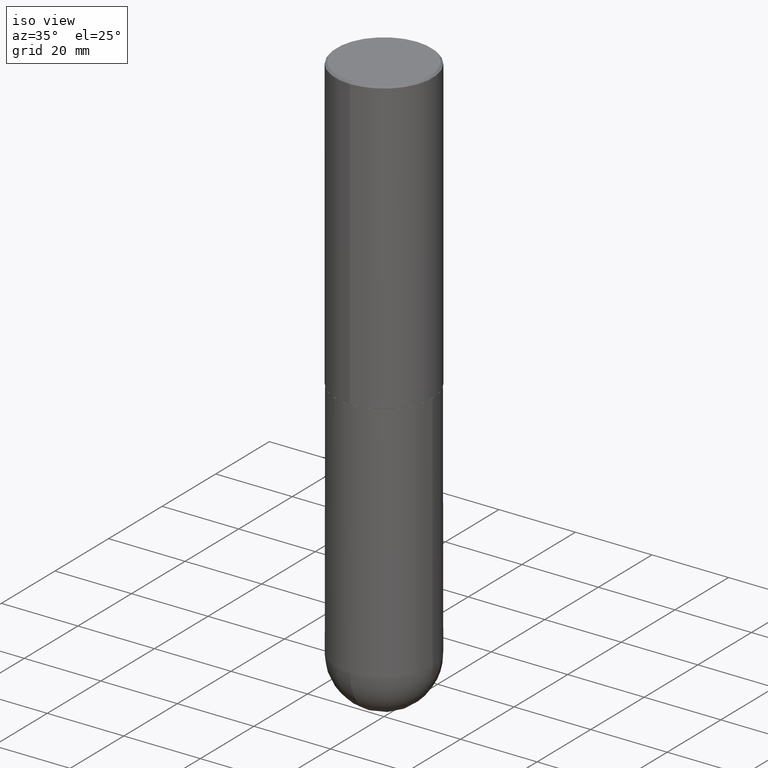
[diagram: clean part render]
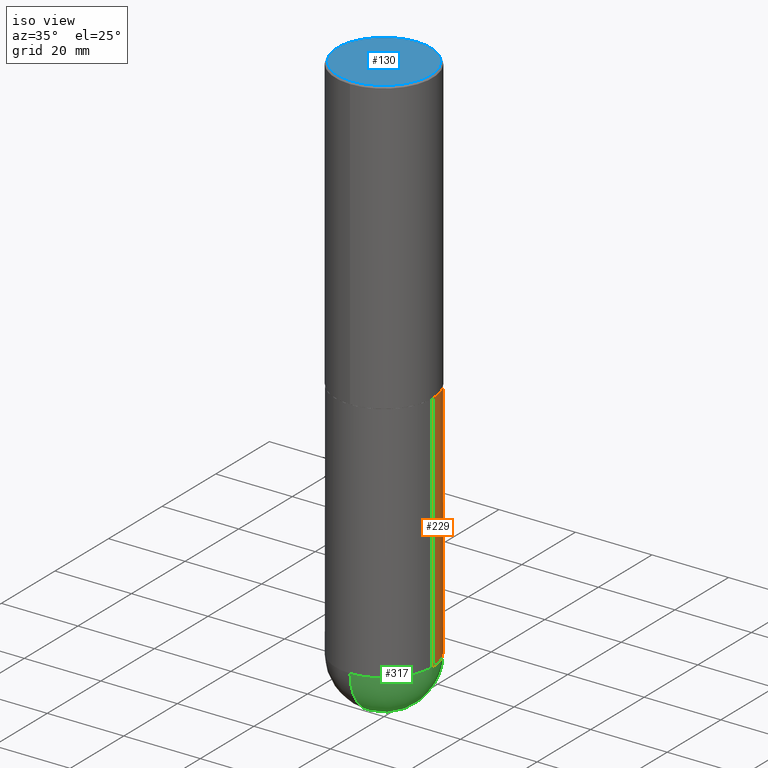
[diagram: same view with three faces highlighted in distinct colors, each labeled with its STEP entity id]
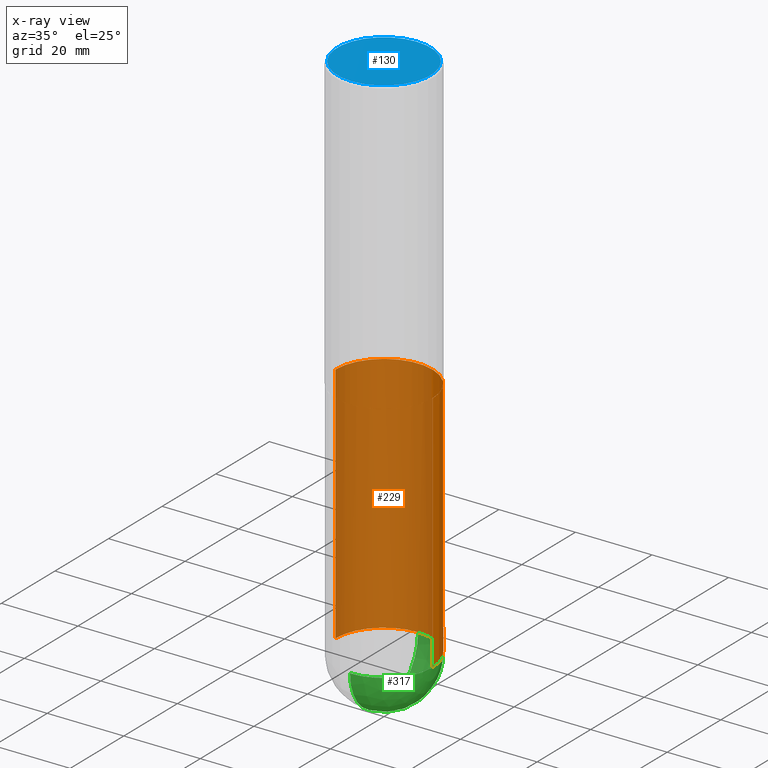
[diagram: x-ray of the same camera — body ghosted, the three highlighted faces saturated]
A machine part, iso view with three faces highlighted in distinct colors.
The next image is the same camera in x-ray (body ghosted, the three faces saturated) — at least one of them is partly hidden behind the body in this view.
Their STEP definitions:

[orange] entity #229 — the highlighted cylindrical surface (partial cylindrical patch) has radius 12.7 mm, axis along (-0, 0, 1).
#2 = DIRECTION ( 'NONE',  ( 1.000000000000000000, -6.982962677686266711E-15, 4.876176775795935793E-29 ) ) ;
#4 = FACE_OUTER_BOUND ( 'NONE', #378, .T. ) ;
#5 = DIRECTION ( 'NONE',  ( -2.445468806185136877E-29, 3.491481338843145188E-15, 1.000000000000000000 ) ) ;
#6 = EDGE_CURVE ( 'NONE', #155, #311, #404, .T. ) ;
#41 = CARTESIAN_POINT ( 'NONE',  ( -0.5000000000000000000, -1.128608201128286947E-14, -3.000000000000000444 ) ) ;
#60 = LINE ( 'NONE', #287, #91 ) ;
#62 = LINE ( 'NONE', #257, #373 ) ;
#63 = EDGE_CURVE ( 'NONE', #224, #143, #60, .T. ) ;
#65 = AXIS2_PLACEMENT_3D ( 'NONE', #396, #302, #201 ) ;
#67 = DIRECTION ( 'NONE',  ( -2.445468806185136877E-29, 3.491481338843145188E-15, 1.000000000000000000 ) ) ;
#75 = DIRECTION ( 'NONE',  ( 1.000000000000000000, -6.982962677686270655E-15, 0.000000000000000000 ) ) ;
#79 = DIRECTION ( 'NONE',  ( -2.445468806185136597E-29, 3.491481338843145583E-15, 1.000000000000000000 ) ) ;
#86 = ORIENTED_EDGE ( 'NONE', *, *, #313, .T. ) ;
#91 = VECTOR ( 'NONE', #5, 39.37007874015748143 ) ;
#95 = AXIS2_PLACEMENT_3D ( 'NONE', #344, #383, #2 ) ;
#111 = ORIENTED_EDGE ( 'NONE', *, *, #6, .T. ) ;
#128 = AXIS2_PLACEMENT_3D ( 'NONE', #164, #226, #352 ) ;
#135 = CIRCLE ( 'NONE', #65, 0.5000000000000000000 ) ;
#143 = VERTEX_POINT ( 'NONE', #346 ) ;
#147 = AXIS2_PLACEMENT_3D ( 'NONE', #199, #79, #75 ) ;
#151 = EDGE_CURVE ( 'NONE', #311, #360, #62, .T. ) ;
#155 = VERTEX_POINT ( 'NONE', #351 ) ;
#164 = CARTESIAN_POINT ( 'NONE',  ( 1.345007843401825128E-28, -1.920314736363730603E-14, -5.500000000000000888 ) ) ;
#172 = ORIENTED_EDGE ( 'NONE', *, *, #63, .F. ) ;
#183 = ORIENTED_EDGE ( 'NONE', *, *, #354, .F. ) ;
#199 = CARTESIAN_POINT ( 'NONE',  ( 1.345007843401825128E-28, -1.920314736363730603E-14, -5.500000000000000888 ) ) ;
#201 = DIRECTION ( 'NONE',  ( 1.000000000000000000, -6.982962677686266711E-15, 0.000000000000000000 ) ) ;
#214 = CYLINDRICAL_SURFACE ( 'NONE', #95, 0.5000000000000000000 ) ;
#219 = CIRCLE ( 'NONE', #147, 0.5000000000000000000 ) ;
#224 = VERTEX_POINT ( 'NONE', #316 ) ;
#226 = DIRECTION ( 'NONE',  ( -2.445468806185136597E-29, 3.491481338843145583E-15, 1.000000000000000000 ) ) ;
#229 = ADVANCED_FACE ( 'NONE', ( #4 ), #214, .T. ) ;
#231 = CARTESIAN_POINT ( 'NONE',  ( -0.5000000000000000000, -1.128608201128287263E-14, -5.500000000000000888 ) ) ;
#257 = CARTESIAN_POINT ( 'NONE',  ( -0.5000000000000000000, 3.552713678800500929E-15, -2.459467545127452891E-29 ) ) ;
#287 = CARTESIAN_POINT ( 'NONE',  ( 0.5000000000000000000, -3.491481338843133355E-15, 2.438088387897967896E-29 ) ) ;
#302 = DIRECTION ( 'NONE',  ( -2.445468806185136597E-29, 3.491481338843145583E-15, 1.000000000000000000 ) ) ;
#311 = VERTEX_POINT ( 'NONE', #231 ) ;
#313 = EDGE_CURVE ( 'NONE', #224, #155, #219, .T. ) ;
#316 = CARTESIAN_POINT ( 'NONE',  ( 0.5000000000000000000, -1.833027702892651007E-14, -5.500000000000000888 ) ) ;
#344 = CARTESIAN_POINT ( 'NONE',  ( 0.000000000000000000, 0.000000000000000000, 0.000000000000000000 ) ) ;
#346 = CARTESIAN_POINT ( 'NONE',  ( 0.5000000000000000000, -1.396592535537257129E-14, -3.000000000000000444 ) ) ;
#351 = CARTESIAN_POINT ( 'NONE',  ( 3.491481338843267462E-15, 0.4999999999999808487, -5.500000000000002665 ) ) ;
#352 = DIRECTION ( 'NONE',  ( 1.000000000000000000, -6.982962677686270655E-15, 0.000000000000000000 ) ) ;
#354 = EDGE_CURVE ( 'NONE', #143, #360, #135, .T. ) ;
#360 = VERTEX_POINT ( 'NONE', #41 ) ;
#373 = VECTOR ( 'NONE', #67, 39.37007874015748143 ) ;
#378 = EDGE_LOOP ( 'NONE', ( #111, #399, #183, #172, #86 ) ) ;
#383 = DIRECTION ( 'NONE',  ( -2.445468806185136597E-29, 3.491481338843145583E-15, 1.000000000000000000 ) ) ;
#396 = CARTESIAN_POINT ( 'NONE',  ( 7.336406418555409790E-29, -1.047444401652943635E-14, -3.000000000000000444 ) ) ;
#399 = ORIENTED_EDGE ( 'NONE', *, *, #151, .T. ) ;
#404 = CIRCLE ( 'NONE', #128, 0.5000000000000000000 ) ;

[blue] entity #130 — the highlighted planar face has unit normal (0, -0, -1).
#9 = AXIS2_PLACEMENT_3D ( 'NONE', #292, #142, #260 ) ;
#13 = EDGE_CURVE ( 'NONE', #105, #174, #377, .T. ) ;
#15 = EDGE_CURVE ( 'NONE', #174, #105, #210, .T. ) ;
#37 = DIRECTION ( 'NONE',  ( 2.445032266171691320E-29, -3.492106488988713156E-15, -1.000000000000000000 ) ) ;
#44 = ORIENTED_EDGE ( 'NONE', *, *, #13, .T. ) ;
#98 = DIRECTION ( 'NONE',  ( 6.982962677686265922E-15, 1.000000000000000000, -3.492106488988713156E-15 ) ) ;
#105 = VERTEX_POINT ( 'NONE', #267 ) ;
#113 = ORIENTED_EDGE ( 'NONE', *, *, #15, .T. ) ;
#129 = PLANE ( 'NONE',  #250 ) ;
#130 = ADVANCED_FACE ( 'NONE', ( #163 ), #129, .F. ) ;
#142 = DIRECTION ( 'NONE',  ( -2.445032266171691881E-29, 3.492106488988713156E-15, 1.000000000000000000 ) ) ;
#150 = CARTESIAN_POINT ( 'NONE',  ( -3.361644018908053211E-15, -0.4800000000000010369, 5.624294268682506588E-16 ) ) ;
#161 = DIRECTION ( 'NONE',  ( -2.445032266171691881E-29, 3.492106488988713156E-15, 1.000000000000000000 ) ) ;
#163 = FACE_OUTER_BOUND ( 'NONE', #394, .T. ) ;
#174 = VERTEX_POINT ( 'NONE', #150 ) ;
#198 = AXIS2_PLACEMENT_3D ( 'NONE', #208, #161, #230 ) ;
#208 = CARTESIAN_POINT ( 'NONE',  ( 2.723232164255456106E-44, -3.889444259444987348E-30, -1.113781687846335001E-15 ) ) ;
#210 = CIRCLE ( 'NONE', #9, 0.4800000000000010369 ) ;
#230 = DIRECTION ( 'NONE',  ( -6.982962677686265922E-15, -1.000000000000000000, 3.492106488988713156E-15 ) ) ;
#250 = AXIS2_PLACEMENT_3D ( 'NONE', #388, #37, #98 ) ;
#260 = DIRECTION ( 'NONE',  ( -6.982962677686265922E-15, -1.000000000000000000, 3.492106488988713156E-15 ) ) ;
#267 = CARTESIAN_POINT ( 'NONE',  ( 3.421651712066274001E-15, 0.4800000000000010369, -2.789992802560921055E-15 ) ) ;
#292 = CARTESIAN_POINT ( 'NONE',  ( 2.723232164255456106E-44, -3.889444259444987348E-30, -1.113781687846335001E-15 ) ) ;
#377 = CIRCLE ( 'NONE', #198, 0.4800000000000010369 ) ;
#388 = CARTESIAN_POINT ( 'NONE',  ( 3.351822085289415042E-15, 0.4800000000000010369, -2.233101958637753555E-15 ) ) ;
#394 = EDGE_LOOP ( 'NONE', ( #44, #113 ) ) ;

[green] entity #317 — the highlighted spherical surface has radius 12.7 mm.
#11 = ORIENTED_EDGE ( 'NONE', *, *, #313, .F. ) ;
#16 = CARTESIAN_POINT ( 'NONE',  ( 1.345007843401825128E-28, -1.920314736363730603E-14, -5.500000000000000888 ) ) ;
#21 = AXIS2_PLACEMENT_3D ( 'NONE', #381, #295, #389 ) ;
#29 = AXIS2_PLACEMENT_3D ( 'NONE', #194, #305, #298 ) ;
#75 = DIRECTION ( 'NONE',  ( 1.000000000000000000, -6.982962677686270655E-15, 0.000000000000000000 ) ) ;
#79 = DIRECTION ( 'NONE',  ( -2.445468806185136597E-29, 3.491481338843145583E-15, 1.000000000000000000 ) ) ;
#80 = ORIENTED_EDGE ( 'NONE', *, *, #355, .F. ) ;
#94 = CARTESIAN_POINT ( 'NONE',  ( -3.552713678800369978E-15, -0.5000000000000196509, -5.499999999999999112 ) ) ;
#97 = CARTESIAN_POINT ( 'NONE',  ( 1.436307221642642309E-28, -2.139245423122024710E-14, -6.000000000000001776 ) ) ;
#99 = VERTEX_POINT ( 'NONE', #97 ) ;
#107 = EDGE_CURVE ( 'NONE', #99, #253, #192, .T. ) ;
#108 = CARTESIAN_POINT ( 'NONE',  ( 1.311895865610436840E-28, -1.967732973177735475E-14, -5.500000000000000888 ) ) ;
#147 = AXIS2_PLACEMENT_3D ( 'NONE', #199, #79, #75 ) ;
#155 = VERTEX_POINT ( 'NONE', #351 ) ;
#158 = ORIENTED_EDGE ( 'NONE', *, *, #309, .T. ) ;
#192 = CIRCLE ( 'NONE', #21, 0.5000000000000005551 ) ;
#194 = CARTESIAN_POINT ( 'NONE',  ( 1.311895865610436840E-28, -1.967732973177735475E-14, -5.500000000000000888 ) ) ;
#197 = FACE_OUTER_BOUND ( 'NONE', #266, .T. ) ;
#199 = CARTESIAN_POINT ( 'NONE',  ( 1.345007843401825128E-28, -1.920314736363730603E-14, -5.500000000000000888 ) ) ;
#219 = CIRCLE ( 'NONE', #147, 0.5000000000000000000 ) ;
#224 = VERTEX_POINT ( 'NONE', #316 ) ;
#232 = DIRECTION ( 'NONE',  ( 1.000000000000000000, -6.982962677686265922E-15, 4.883557194083112340E-29 ) ) ;
#253 = VERTEX_POINT ( 'NONE', #94 ) ;
#266 = EDGE_LOOP ( 'NONE', ( #268, #158, #11, #80 ) ) ;
#268 = ORIENTED_EDGE ( 'NONE', *, *, #107, .F. ) ;
#270 = DIRECTION ( 'NONE',  ( 6.982962677686265922E-15, 1.000000000000000000, 0.000000000000000000 ) ) ;
#274 = AXIS2_PLACEMENT_3D ( 'NONE', #16, #359, #339 ) ;
#295 = DIRECTION ( 'NONE',  ( -1.000000000000000000, 7.105427357601001070E-15, -4.926315508542082329E-29 ) ) ;
#298 = DIRECTION ( 'NONE',  ( 6.982962677686265922E-15, 1.000000000000000000, -4.370956789862816416E-15 ) ) ;
#305 = DIRECTION ( 'NONE',  ( -1.000000000000000000, 6.982962677686265922E-15, -4.883557194083112901E-29 ) ) ;
#309 = EDGE_CURVE ( 'NONE', #99, #155, #411, .T. ) ;
#313 = EDGE_CURVE ( 'NONE', #224, #155, #219, .T. ) ;
#316 = CARTESIAN_POINT ( 'NONE',  ( 0.5000000000000000000, -1.833027702892651007E-14, -5.500000000000000888 ) ) ;
#317 = ADVANCED_FACE ( 'NONE', ( #197 ), #332, .T. ) ;
#332 = SPHERICAL_SURFACE ( 'NONE', #29, 0.5000000000000005551 ) ;
#339 = DIRECTION ( 'NONE',  ( 1.000000000000000000, -6.982962677686270655E-15, 0.000000000000000000 ) ) ;
#351 = CARTESIAN_POINT ( 'NONE',  ( 3.491481338843267462E-15, 0.4999999999999808487, -5.500000000000002665 ) ) ;
#355 = EDGE_CURVE ( 'NONE', #253, #224, #395, .T. ) ;
#359 = DIRECTION ( 'NONE',  ( -2.445468806185136597E-29, 3.491481338843145583E-15, 1.000000000000000000 ) ) ;
#381 = CARTESIAN_POINT ( 'NONE',  ( 1.311895865610436840E-28, -1.967732973177735475E-14, -5.500000000000000888 ) ) ;
#389 = DIRECTION ( 'NONE',  ( -7.105427357601000281E-15, -1.000000000000000000, 0.000000000000000000 ) ) ;
#393 = AXIS2_PLACEMENT_3D ( 'NONE', #108, #232, #270 ) ;
#395 = CIRCLE ( 'NONE', #274, 0.5000000000000000000 ) ;
#411 = CIRCLE ( 'NONE', #393, 0.5000000000000005551 ) ;